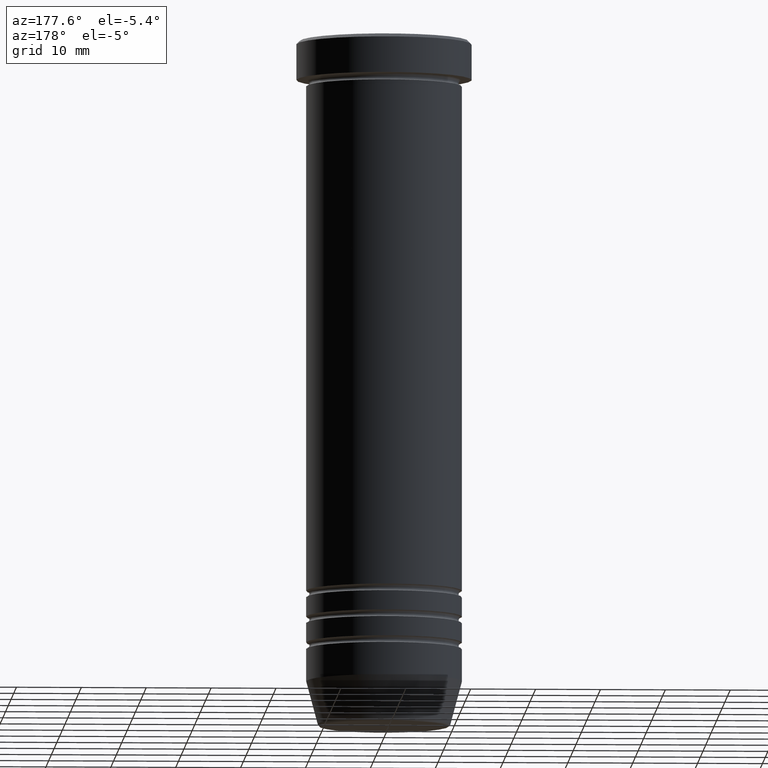
[diagram: clean part render]
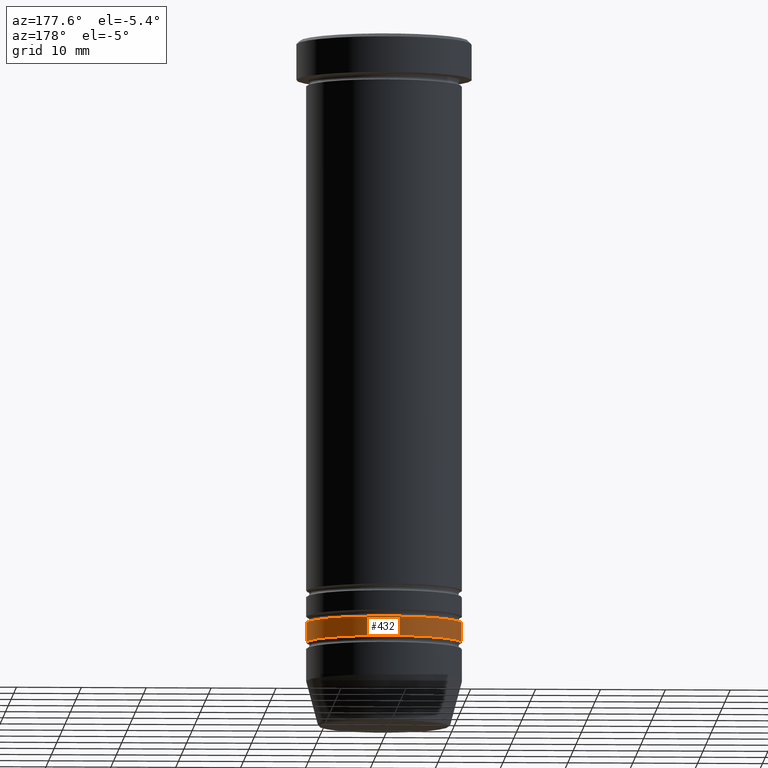
[diagram: same view with one face highlighted and labeled with its STEP entity id]
A machine part, auxiliary view. The second image highlights one B-rep face of the part: STEP entity #432.
In plain terms, the highlighted cylindrical surface (partial cylindrical patch) has radius 12 mm, axis along (-0, -0, 1).
Its self-contained STEP definition (entity closure, byte-faithful):
#18 = DIRECTION ( 'NONE',  ( -0.000000000000000000, -0.000000000000000000, 1.000000000000000000 ) ) ;
#43 = EDGE_CURVE ( 'NONE', #857, #308, #542, .T. ) ;
#73 = CARTESIAN_POINT ( 'NONE',  ( -12.00000000000000178, 1.469576158976824144E-15, -90.00000000000000000 ) ) ;
#99 = CIRCLE ( 'NONE', #1040, 12.00000000000000178 ) ;
#104 = EDGE_CURVE ( 'NONE', #775, #693, #99, .T. ) ;
#151 = DIRECTION ( 'NONE',  ( 1.000000000000000000, 0.000000000000000000, 0.000000000000000000 ) ) ;
#212 = VECTOR ( 'NONE', #270, 1000.000000000000000 ) ;
#257 = CARTESIAN_POINT ( 'NONE',  ( -11.99999999999999467, 1.469576158976823553E-15, -92.99999999999998579 ) ) ;
#258 = ORIENTED_EDGE ( 'NONE', *, *, #104, .F. ) ;
#270 = DIRECTION ( 'NONE',  ( -0.000000000000000000, -0.000000000000000000, 1.000000000000000000 ) ) ;
#308 = VERTEX_POINT ( 'NONE', #257 ) ;
#343 = DIRECTION ( 'NONE',  ( -0.000000000000000000, -0.000000000000000000, 1.000000000000000000 ) ) ;
#345 = CYLINDRICAL_SURFACE ( 'NONE', #1029, 11.99999999999999822 ) ;
#400 = EDGE_CURVE ( 'NONE', #308, #693, #1051, .T. ) ;
#415 = DIRECTION ( 'NONE',  ( -0.000000000000000000, -0.000000000000000000, 1.000000000000000000 ) ) ;
#417 = EDGE_CURVE ( 'NONE', #857, #775, #1070, .T. ) ;
#432 = ADVANCED_FACE ( 'NONE', ( #540 ), #345, .T. ) ;
#434 = CARTESIAN_POINT ( 'NONE',  ( 0.000000000000000000, 0.000000000000000000, -90.00000000000000000 ) ) ;
#455 = DIRECTION ( 'NONE',  ( 1.000000000000000000, 0.000000000000000000, 0.000000000000000000 ) ) ;
#466 = ORIENTED_EDGE ( 'NONE', *, *, #417, .F. ) ;
#508 = EDGE_LOOP ( 'NONE', ( #720, #1031, #258, #466 ) ) ;
#531 = CARTESIAN_POINT ( 'NONE',  ( -11.99999999999999822, 1.469576158976823750E-15, 0.000000000000000000 ) ) ;
#534 = CARTESIAN_POINT ( 'NONE',  ( 11.99999999999999467, 0.000000000000000000, -92.99999999999998579 ) ) ;
#540 = FACE_OUTER_BOUND ( 'NONE', #508, .T. ) ;
#542 = CIRCLE ( 'NONE', #657, 11.99999999999999467 ) ;
#617 = DIRECTION ( 'NONE',  ( 1.000000000000000000, 0.000000000000000000, 0.000000000000000000 ) ) ;
#630 = CARTESIAN_POINT ( 'NONE',  ( 0.000000000000000000, 0.000000000000000000, 0.000000000000000000 ) ) ;
#657 = AXIS2_PLACEMENT_3D ( 'NONE', #849, #415, #151 ) ;
#693 = VERTEX_POINT ( 'NONE', #73 ) ;
#720 = ORIENTED_EDGE ( 'NONE', *, *, #43, .T. ) ;
#775 = VERTEX_POINT ( 'NONE', #794 ) ;
#794 = CARTESIAN_POINT ( 'NONE',  ( 12.00000000000000178, 0.000000000000000000, -90.00000000000000000 ) ) ;
#849 = CARTESIAN_POINT ( 'NONE',  ( 0.000000000000000000, 0.000000000000000000, -92.99999999999998579 ) ) ;
#857 = VERTEX_POINT ( 'NONE', #534 ) ;
#876 = DIRECTION ( 'NONE',  ( -0.000000000000000000, -0.000000000000000000, 1.000000000000000000 ) ) ;
#1005 = VECTOR ( 'NONE', #876, 1000.000000000000000 ) ;
#1029 = AXIS2_PLACEMENT_3D ( 'NONE', #630, #18, #455 ) ;
#1031 = ORIENTED_EDGE ( 'NONE', *, *, #400, .T. ) ;
#1040 = AXIS2_PLACEMENT_3D ( 'NONE', #434, #343, #617 ) ;
#1051 = LINE ( 'NONE', #531, #1005 ) ;
#1067 = CARTESIAN_POINT ( 'NONE',  ( 11.99999999999999822, 0.000000000000000000, 0.000000000000000000 ) ) ;
#1070 = LINE ( 'NONE', #1067, #212 ) ;